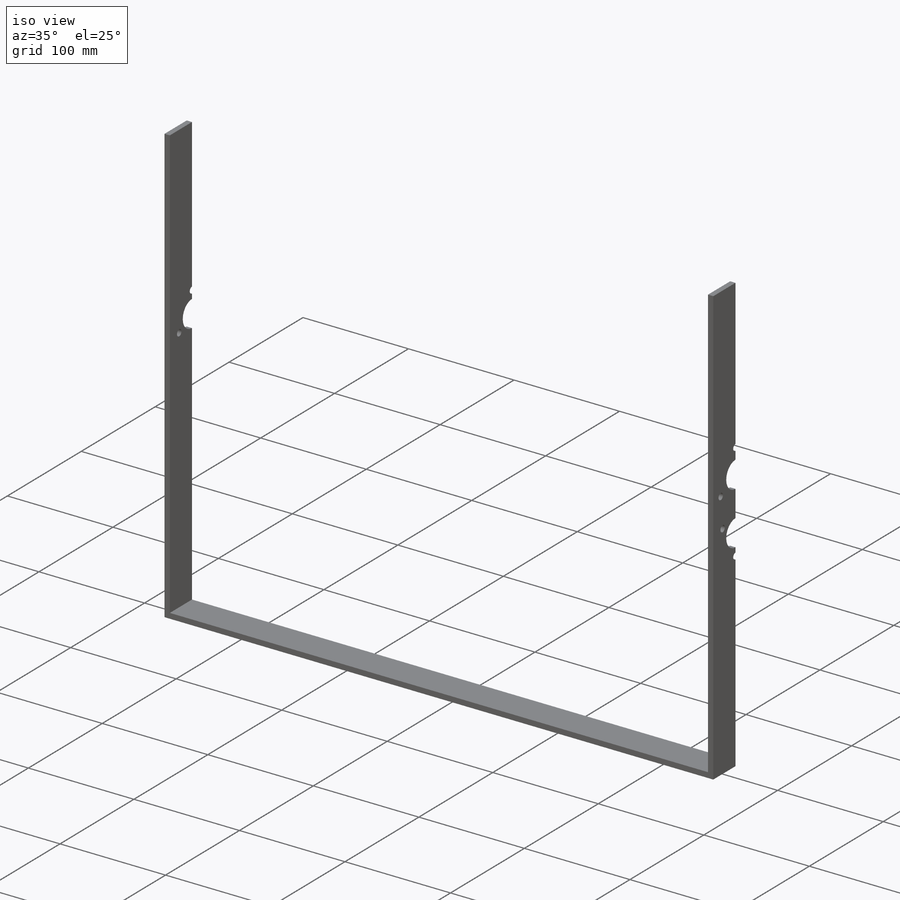
[diagram: iso view]
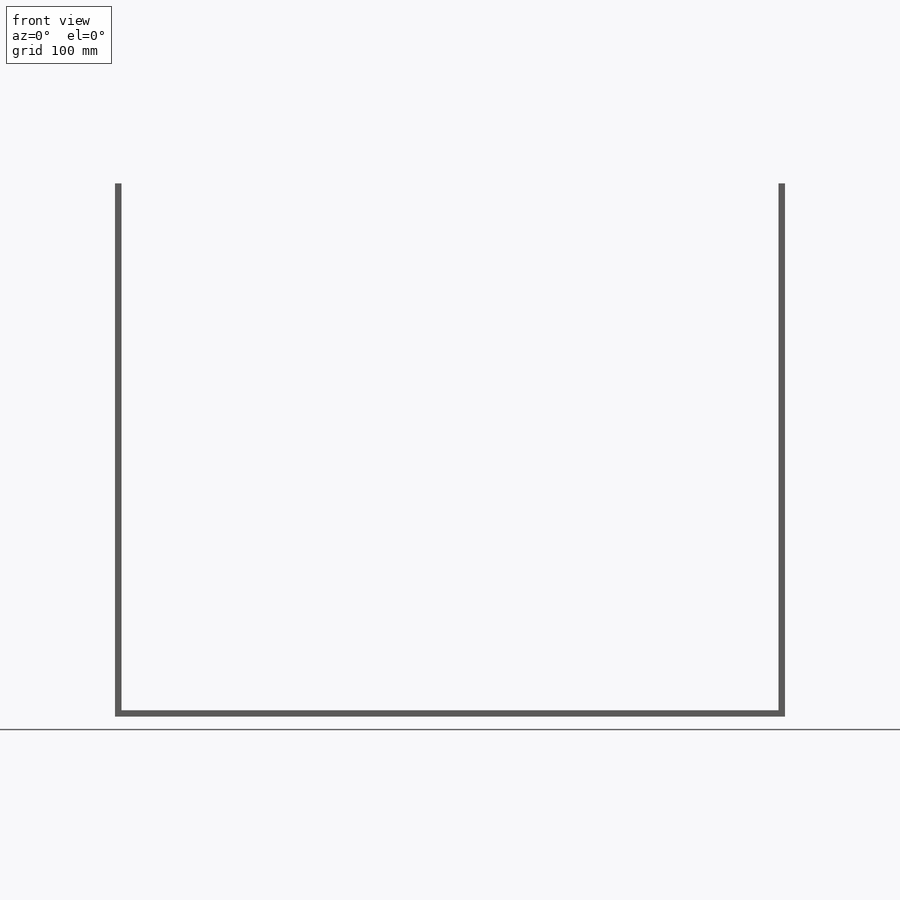
[diagram: front view]
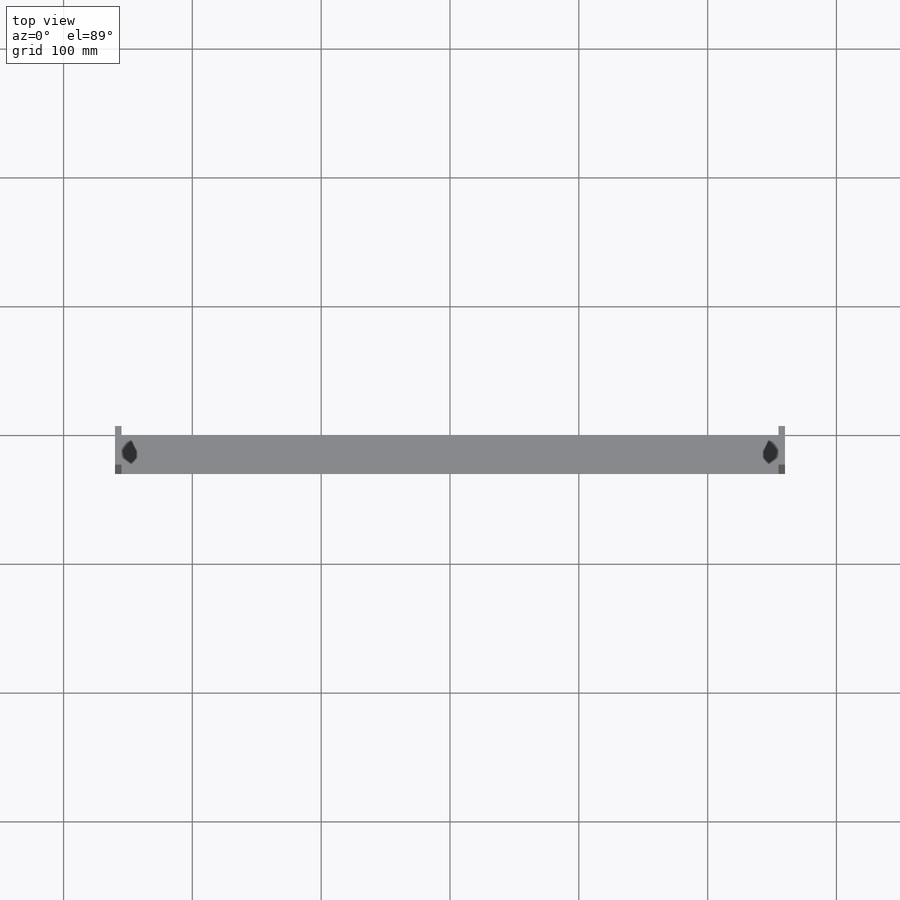
[diagram: top view]
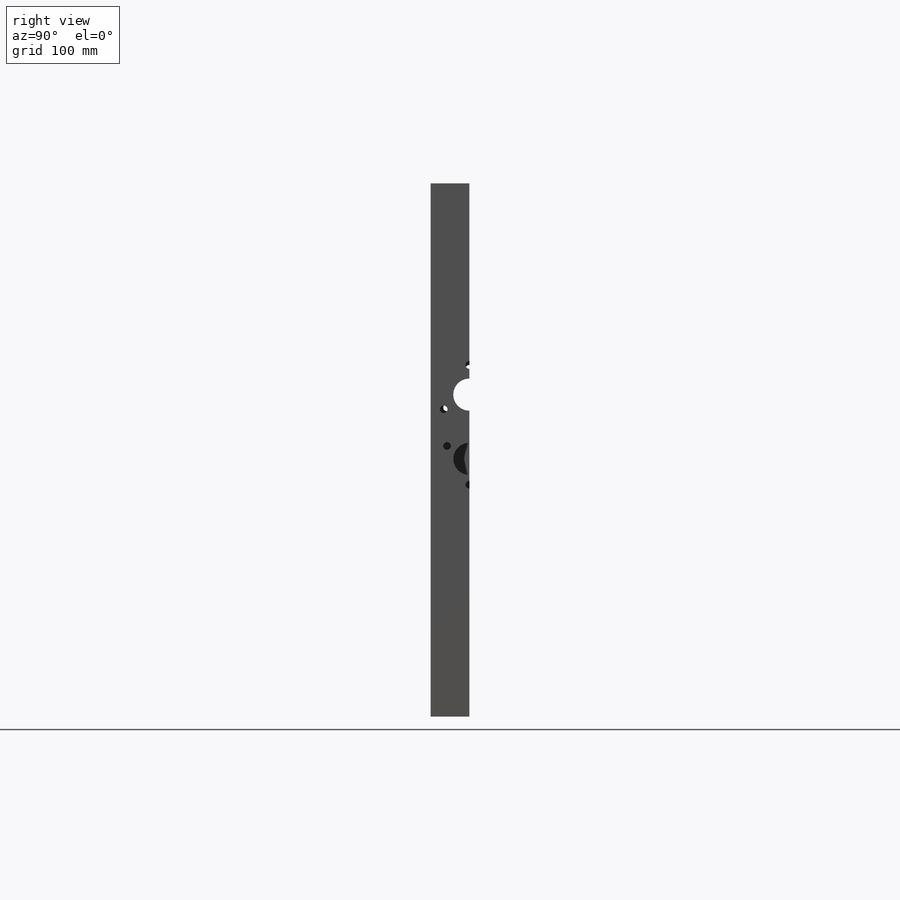
[diagram: right view]
SOLIDWORKS PART (.sldprt)
format: sldprt  version: not decoded by parser v0  size: 281,600 bytes
history: native  units: mm
features: sketch x7, cut_extrude x5, plane x3, material x1, extrude x1 (+9 scaffold rows collapsed)
feature tree (26):
  scaffold x9  (default folders/planes/origin — collapsed)
  material  "普通碳钢"
  plane  "前视基准面"
  plane  "上视基准面"
  plane  "右视基准面"
  sketch  "草图1"  dims[c1.D1=~89.813002mm c1.D2=~110.42646mm c2.D1=~3.134025mm c2.D2=~10.655668mm c3.D1=510.0mm c3.D2=409.0mm c4.D1=30.0mm c4.D5=5.0mm c4.D6=1.0mm c4.D7=5.0mm]
  sketch  "草图2"  dims[c1.D1=20.0mm c1.D2=20.0mm c1.D3=25.0mm c1.D4=25.0mm c2.D1=250.0mm c2.D2=50.0mm]
  cut_extrude  "切除-拉伸1"  [1 undecoded]
  sketch  "草图3"  dims[D1=25.0mm D2=25.0mm D3=50.0mm]
  cut_extrude  "切除-拉伸2"  [1 undecoded]
  sketch  "草图4"  dims[c1.D2=15.0mm c1.D3=10.0mm c1.D1=100.0mm c2.D2=~16.781239mm c2.D4=20.0mm c2.D5=20.0mm]
  extrude  "凸台-拉伸1"  Depth=5mm
  sketch  "草图5"  dims[D1=40.0mm D2=6.0mm D3=3.0]
  cut_extrude  "切除-拉伸3"  [1 undecoded]
  sketch  "草图6"  dims[D1=40.0mm D2=6.0mm D3=3.0]
  cut_extrude  "切除-拉伸5"  [1 undecoded]
  sketch  "草图7"  dims[D1=46.0mm D2=6.0mm D3=3.0]
  cut_extrude  "切除-拉伸6"  [1 undecoded]
decode coverage: 8 of 13 modeling features carry decoded parameters
note: ~ marks probable driven/reference dimensions
note: 5 parameter values undecoded
summary: no parameter record found for 5 features
note: suppression state not decoded; provenance and decode notes live in map.json
